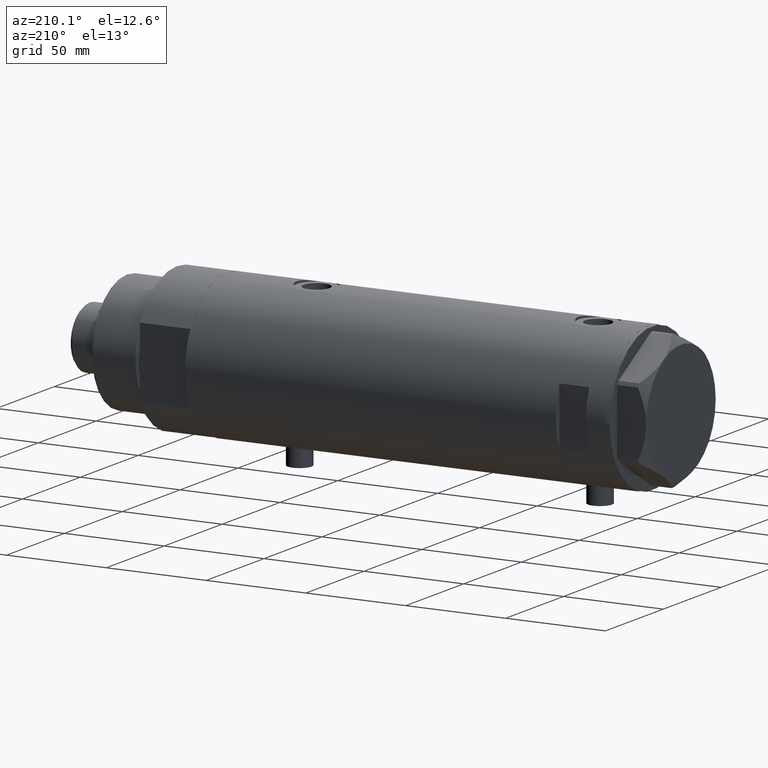
[diagram: clean part render]
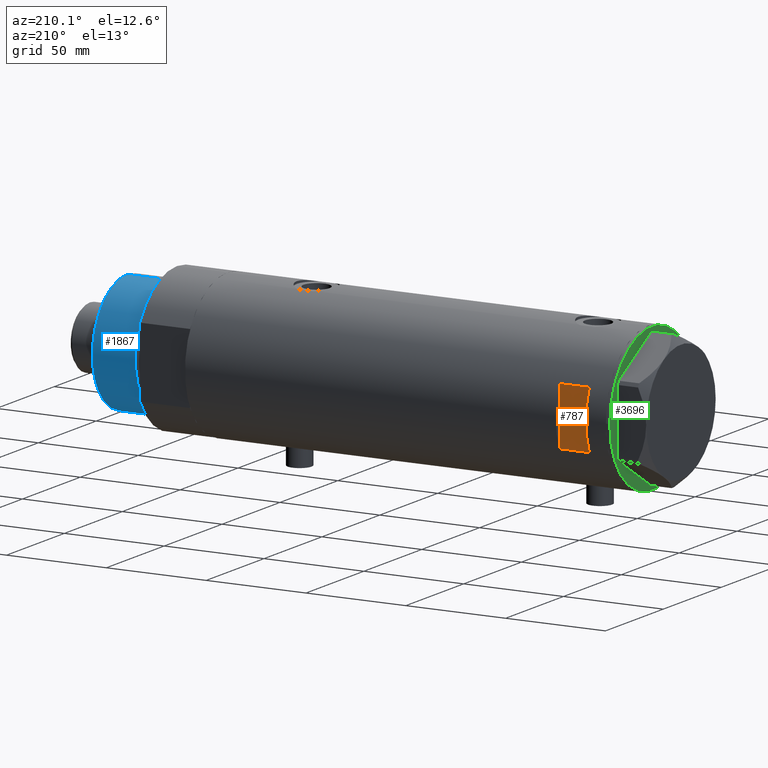
[diagram: same view with three faces highlighted in distinct colors, each labeled with its STEP entity id]
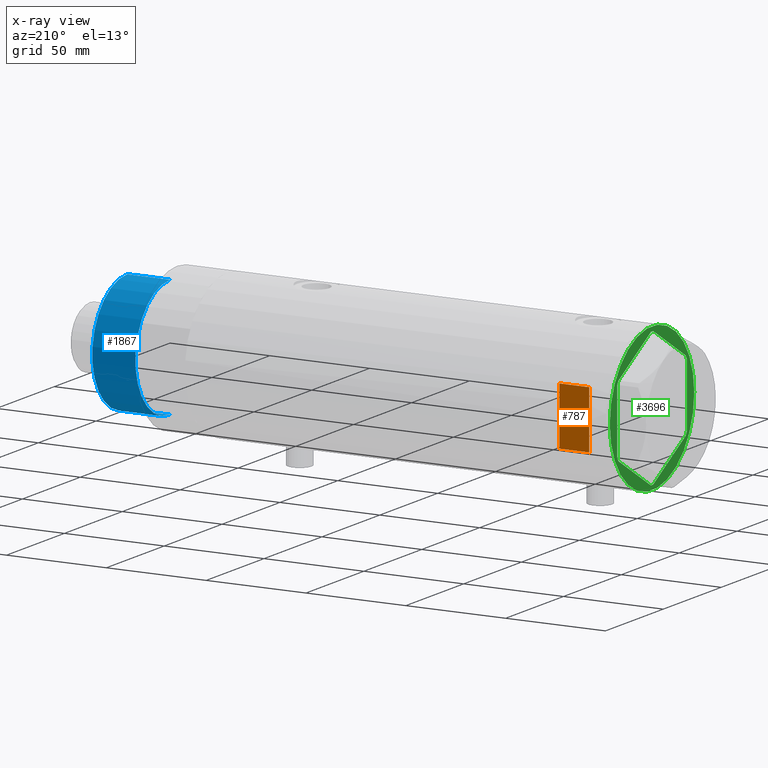
[diagram: x-ray of the same camera — body ghosted, the three highlighted faces saturated]
A machine part, auxiliary view with three faces highlighted in distinct colors.
The next image is the same camera in x-ray (body ghosted, the three faces saturated) — at least one of them is partly hidden behind the body in this view.
Their STEP definitions:

[orange] entity #787 — the highlighted planar face has unit normal (0, -1, -0).
#68 = VECTOR ( 'NONE', #4391, 1000.000000000000000 ) ;
#76 = ORIENTED_EDGE ( 'NONE', *, *, #3119, .T. ) ;
#207 = ORIENTED_EDGE ( 'NONE', *, *, #324, .T. ) ;
#231 = VECTOR ( 'NONE', #2472, 1000.000000000000000 ) ;
#324 = EDGE_CURVE ( 'NONE', #4333, #3210, #2555, .T. ) ;
#472 = FACE_OUTER_BOUND ( 'NONE', #2873, .T. ) ;
#521 = CARTESIAN_POINT ( 'NONE',  ( -36.50000000000000000, 33.50000000000000000, 95.40000000000001990 ) ) ;
#545 = DIRECTION ( 'NONE',  ( 0.000000000000000000, 0.000000000000000000, -1.000000000000000000 ) ) ;
#649 = CARTESIAN_POINT ( 'NONE',  ( 14.49137674618942562, 33.50000000000000000, -105.4000000000000057 ) ) ;
#656 = VECTOR ( 'NONE', #3284, 1000.000000000000000 ) ;
#787 = ADVANCED_FACE ( 'NONE', ( #472 ), #2933, .F. ) ;
#880 = CARTESIAN_POINT ( 'NONE',  ( -14.49137674618942739, 33.50000000000000000, 95.40000000000001990 ) ) ;
#969 = CARTESIAN_POINT ( 'NONE',  ( -36.50000000000000000, 33.50000000000000000, 80.40000000000003411 ) ) ;
#1000 = CARTESIAN_POINT ( 'NONE',  ( 14.49137674618942739, 33.50000000000000000, 95.40000000000001990 ) ) ;
#1266 = EDGE_CURVE ( 'NONE', #2802, #3436, #3757, .T. ) ;
#1301 = DIRECTION ( 'NONE',  ( -0.000000000000000000, -0.000000000000000000, -1.000000000000000000 ) ) ;
#1497 = DIRECTION ( 'NONE',  ( 0.000000000000000000, -1.000000000000000000, -0.000000000000000000 ) ) ;
#1806 = AXIS2_PLACEMENT_3D ( 'NONE', #1866, #1497, #545 ) ;
#1866 = CARTESIAN_POINT ( 'NONE',  ( -36.50000000000000000, 33.50000000000000000, 95.40000000000001990 ) ) ;
#1898 = VECTOR ( 'NONE', #1301, 1000.000000000000000 ) ;
#1917 = EDGE_CURVE ( 'NONE', #2802, #4333, #3903, .T. ) ;
#2298 = CARTESIAN_POINT ( 'NONE',  ( 14.49137674618942384, 33.50000000000000000, 80.40000000000003411 ) ) ;
#2472 = DIRECTION ( 'NONE',  ( 0.000000000000000000, 0.000000000000000000, 1.000000000000000000 ) ) ;
#2555 = LINE ( 'NONE', #521, #656 ) ;
#2664 = ORIENTED_EDGE ( 'NONE', *, *, #1266, .F. ) ;
#2704 = LINE ( 'NONE', #649, #1898 ) ;
#2802 = VERTEX_POINT ( 'NONE', #3752 ) ;
#2873 = EDGE_LOOP ( 'NONE', ( #76, #2664, #3994, #207 ) ) ;
#2933 = PLANE ( 'NONE',  #1806 ) ;
#3119 = EDGE_CURVE ( 'NONE', #3210, #3436, #2704, .T. ) ;
#3210 = VERTEX_POINT ( 'NONE', #1000 ) ;
#3284 = DIRECTION ( 'NONE',  ( 1.000000000000000000, -0.000000000000000000, -0.000000000000000000 ) ) ;
#3436 = VERTEX_POINT ( 'NONE', #2298 ) ;
#3495 = CARTESIAN_POINT ( 'NONE',  ( -14.49137674618942562, 33.50000000000000000, -105.4000000000000057 ) ) ;
#3752 = CARTESIAN_POINT ( 'NONE',  ( -14.49137674618942562, 33.50000000000000000, 80.40000000000003411 ) ) ;
#3757 = LINE ( 'NONE', #969, #68 ) ;
#3903 = LINE ( 'NONE', #3495, #231 ) ;
#3994 = ORIENTED_EDGE ( 'NONE', *, *, #1917, .T. ) ;
#4333 = VERTEX_POINT ( 'NONE', #880 ) ;
#4391 = DIRECTION ( 'NONE',  ( 1.000000000000000000, -0.000000000000000000, -0.000000000000000000 ) ) ;

[blue] entity #1867 — the highlighted cylindrical surface (partial cylindrical patch) has radius 30 mm, axis along (-1, -0, 0).
#66 = DIRECTION ( 'NONE',  ( -0.000000000000000000, -0.000000000000000000, -1.000000000000000000 ) ) ;
#455 = AXIS2_PLACEMENT_3D ( 'NONE', #3529, #1436, #700 ) ;
#465 = CYLINDRICAL_SURFACE ( 'NONE', #603, 30.00000000000000000 ) ;
#603 = AXIS2_PLACEMENT_3D ( 'NONE', #1136, #66, #2449 ) ;
#694 = CARTESIAN_POINT ( 'NONE',  ( -30.00000000000000000, 0.000000000000000000, 28.57384048104054486 ) ) ;
#700 = DIRECTION ( 'NONE',  ( 1.000000000000000000, 0.000000000000000000, 0.000000000000000000 ) ) ;
#724 = CARTESIAN_POINT ( 'NONE',  ( 30.00000000000000000, 3.673940397442058389E-15, 50.19999999999999574 ) ) ;
#933 = CARTESIAN_POINT ( 'NONE',  ( 30.00000000000000000, 3.673940397442058389E-15, 28.57384048104054486 ) ) ;
#1130 = LINE ( 'NONE', #724, #2186 ) ;
#1136 = CARTESIAN_POINT ( 'NONE',  ( 0.000000000000000000, 0.000000000000000000, 50.19999999999999574 ) ) ;
#1153 = VERTEX_POINT ( 'NONE', #933 ) ;
#1228 = EDGE_CURVE ( 'NONE', #1980, #4196, #2012, .T. ) ;
#1436 = DIRECTION ( 'NONE',  ( 0.000000000000000000, 0.000000000000000000, 1.000000000000000000 ) ) ;
#1482 = CIRCLE ( 'NONE', #1559, 30.00000000000000000 ) ;
#1559 = AXIS2_PLACEMENT_3D ( 'NONE', #3028, #2682, #3769 ) ;
#1761 = DIRECTION ( 'NONE',  ( -0.000000000000000000, -0.000000000000000000, -1.000000000000000000 ) ) ;
#1867 = ADVANCED_FACE ( 'NONE', ( #4238 ), #465, .T. ) ;
#1980 = VERTEX_POINT ( 'NONE', #2926 ) ;
#2006 = VERTEX_POINT ( 'NONE', #2302 ) ;
#2012 = LINE ( 'NONE', #3012, #3988 ) ;
#2186 = VECTOR ( 'NONE', #1761, 1000.000000000000000 ) ;
#2302 = CARTESIAN_POINT ( 'NONE',  ( 30.00000000000000000, 3.673940397442058389E-15, 50.19999999999999574 ) ) ;
#2317 = EDGE_CURVE ( 'NONE', #2006, #1153, #1130, .T. ) ;
#2333 = DIRECTION ( 'NONE',  ( -0.000000000000000000, -0.000000000000000000, -1.000000000000000000 ) ) ;
#2449 = DIRECTION ( 'NONE',  ( -1.000000000000000000, 0.000000000000000000, 0.000000000000000000 ) ) ;
#2534 = ORIENTED_EDGE ( 'NONE', *, *, #2317, .T. ) ;
#2620 = EDGE_CURVE ( 'NONE', #2006, #1980, #4066, .T. ) ;
#2682 = DIRECTION ( 'NONE',  ( -0.000000000000000000, -0.000000000000000000, 1.000000000000000000 ) ) ;
#2866 = ORIENTED_EDGE ( 'NONE', *, *, #1228, .F. ) ;
#2926 = CARTESIAN_POINT ( 'NONE',  ( -30.00000000000000000, 0.000000000000000000, 50.19999999999999574 ) ) ;
#3012 = CARTESIAN_POINT ( 'NONE',  ( -30.00000000000000000, 0.000000000000000000, 50.19999999999999574 ) ) ;
#3028 = CARTESIAN_POINT ( 'NONE',  ( 0.000000000000000000, 0.000000000000000000, 28.57384048104054486 ) ) ;
#3529 = CARTESIAN_POINT ( 'NONE',  ( 0.000000000000000000, 0.000000000000000000, 50.19999999999999574 ) ) ;
#3636 = EDGE_LOOP ( 'NONE', ( #4256, #2534, #3964, #2866 ) ) ;
#3769 = DIRECTION ( 'NONE',  ( 1.000000000000000000, 0.000000000000000000, 0.000000000000000000 ) ) ;
#3964 = ORIENTED_EDGE ( 'NONE', *, *, #4442, .T. ) ;
#3988 = VECTOR ( 'NONE', #2333, 1000.000000000000000 ) ;
#4066 = CIRCLE ( 'NONE', #455, 30.00000000000000000 ) ;
#4196 = VERTEX_POINT ( 'NONE', #694 ) ;
#4238 = FACE_OUTER_BOUND ( 'NONE', #3636, .T. ) ;
#4256 = ORIENTED_EDGE ( 'NONE', *, *, #2620, .F. ) ;
#4442 = EDGE_CURVE ( 'NONE', #1153, #4196, #1482, .T. ) ;

[green] entity #3696 — the highlighted planar face has unit normal (1, 0, -0).
#20 = DIRECTION ( 'NONE',  ( -1.000000000000000000, -0.000000000000000000, -0.000000000000000000 ) ) ;
#73 = DIRECTION ( 'NONE',  ( -0.5000000000000012212, 0.8660254037844380415, -0.000000000000000000 ) ) ;
#104 = ORIENTED_EDGE ( 'NONE', *, *, #1556, .F. ) ;
#155 = DIRECTION ( 'NONE',  ( 1.000000000000000000, -0.000000000000000000, -0.000000000000000000 ) ) ;
#202 = CARTESIAN_POINT ( 'NONE',  ( -5.841958412462644145E-15, -34.64101615137753498, 0.000000000000000000 ) ) ;
#222 = ORIENTED_EDGE ( 'NONE', *, *, #3775, .T. ) ;
#291 = CARTESIAN_POINT ( 'NONE',  ( 0.000000000000000000, 34.64101615137754209, 0.000000000000000000 ) ) ;
#316 = DIRECTION ( 'NONE',  ( 0.000000000000000000, 0.000000000000000000, -1.000000000000000000 ) ) ;
#323 = EDGE_CURVE ( 'NONE', #1896, #841, #2887, .T. ) ;
#342 = ORIENTED_EDGE ( 'NONE', *, *, #3394, .F. ) ;
#356 = CARTESIAN_POINT ( 'NONE',  ( -29.03005154776141339, 17.88050807568878042, 0.000000000000000000 ) ) ;
#363 = LINE ( 'NONE', #3129, #530 ) ;
#443 = VECTOR ( 'NONE', #2307, 1000.000000000000227 ) ;
#530 = VECTOR ( 'NONE', #3172, 999.9999999999998863 ) ;
#531 = CARTESIAN_POINT ( 'NONE',  ( 29.99999999999999289, 17.32050807568878170, 0.000000000000000000 ) ) ;
#550 = DIRECTION ( 'NONE',  ( 0.8660254037844389297, 0.4999999999999996114, 0.000000000000000000 ) ) ;
#646 = VERTEX_POINT ( 'NONE', #2778 ) ;
#670 = ORIENTED_EDGE ( 'NONE', *, *, #3788, .T. ) ;
#675 = VERTEX_POINT ( 'NONE', #3149 ) ;
#738 = DIRECTION ( 'NONE',  ( -3.004629197474318063E-16, 1.000000000000000000, 0.000000000000000000 ) ) ;
#810 = CARTESIAN_POINT ( 'NONE',  ( 29.51502577388068715, -17.04050807568881254, 0.000000000000000000 ) ) ;
#825 = AXIS2_PLACEMENT_3D ( 'NONE', #953, #316, #2377 ) ;
#841 = VERTEX_POINT ( 'NONE', #3220 ) ;
#941 = CARTESIAN_POINT ( 'NONE',  ( -30.00000000000000000, -17.32050807568877460, 0.000000000000000000 ) ) ;
#953 = CARTESIAN_POINT ( 'NONE',  ( 0.000000000000000000, 0.000000000000000000, 0.000000000000000000 ) ) ;
#991 = PLANE ( 'NONE',  #825 ) ;
#1023 = VERTEX_POINT ( 'NONE', #1823 ) ;
#1027 = EDGE_CURVE ( 'NONE', #2935, #3532, #3967, .T. ) ;
#1058 = LINE ( 'NONE', #1458, #3488 ) ;
#1147 = LINE ( 'NONE', #941, #443 ) ;
#1184 = VECTOR ( 'NONE', #1481, 1000.000000000000000 ) ;
#1201 = DIRECTION ( 'NONE',  ( -0.8660254037844387076, 0.4999999999999997780, 0.000000000000000000 ) ) ;
#1231 = ORIENTED_EDGE ( 'NONE', *, *, #4220, .F. ) ;
#1244 = CIRCLE ( 'NONE', #2266, 36.50000000000000000 ) ;
#1275 = CARTESIAN_POINT ( 'NONE',  ( -36.50000000000000000, 4.469960816887838430E-15, 0.000000000000000000 ) ) ;
#1322 = VERTEX_POINT ( 'NONE', #2646 ) ;
#1327 = VERTEX_POINT ( 'NONE', #356 ) ;
#1419 = LINE ( 'NONE', #2462, #2757 ) ;
#1458 = CARTESIAN_POINT ( 'NONE',  ( 0.000000000000000000, -34.08101615137752560, 0.000000000000000000 ) ) ;
#1481 = DIRECTION ( 'NONE',  ( 0.5000000000000008882, 0.8660254037844381525, -0.000000000000000000 ) ) ;
#1539 = CARTESIAN_POINT ( 'NONE',  ( 29.03005154776141694, -17.88050807568878042, 0.000000000000000000 ) ) ;
#1556 = EDGE_CURVE ( 'NONE', #1896, #2744, #1147, .T. ) ;
#1682 = VECTOR ( 'NONE', #1756, 999.9999999999998863 ) ;
#1733 = VECTOR ( 'NONE', #73, 999.9999999999998863 ) ;
#1739 = EDGE_LOOP ( 'NONE', ( #342, #2253, #1231, #670, #2578, #2582, #104, #2900, #4465, #222, #2475, #3483 ) ) ;
#1756 = DIRECTION ( 'NONE',  ( -0.5000000000000012212, -0.8660254037844380415, -0.000000000000000000 ) ) ;
#1823 = CARTESIAN_POINT ( 'NONE',  ( 29.03005154776139207, 17.88050807568879463, 0.000000000000000000 ) ) ;
#1859 = EDGE_CURVE ( 'NONE', #675, #2059, #1244, .T. ) ;
#1887 = CARTESIAN_POINT ( 'NONE',  ( 0.000000000000000000, 0.000000000000000000, 0.000000000000000000 ) ) ;
#1896 = VERTEX_POINT ( 'NONE', #4169 ) ;
#1923 = LINE ( 'NONE', #531, #4141 ) ;
#1956 = VERTEX_POINT ( 'NONE', #1539 ) ;
#2059 = VERTEX_POINT ( 'NONE', #1275 ) ;
#2102 = CARTESIAN_POINT ( 'NONE',  ( 0.000000000000000000, 34.08101615137753981, 0.000000000000000000 ) ) ;
#2107 = DIRECTION ( 'NONE',  ( 0.000000000000000000, -1.000000000000000000, 0.000000000000000000 ) ) ;
#2132 = VERTEX_POINT ( 'NONE', #3021 ) ;
#2253 = ORIENTED_EDGE ( 'NONE', *, *, #2295, .T. ) ;
#2266 = AXIS2_PLACEMENT_3D ( 'NONE', #2518, #2782, #3930 ) ;
#2295 = EDGE_CURVE ( 'NONE', #1023, #3919, #363, .T. ) ;
#2307 = DIRECTION ( 'NONE',  ( 0.8660254037844387076, -0.4999999999999997780, 0.000000000000000000 ) ) ;
#2377 = DIRECTION ( 'NONE',  ( -1.000000000000000000, 0.000000000000000000, -0.000000000000000000 ) ) ;
#2443 = LINE ( 'NONE', #810, #1682 ) ;
#2455 = CARTESIAN_POINT ( 'NONE',  ( -0.9699484522385684038, 34.08101615137753981, 0.000000000000000000 ) ) ;
#2462 = CARTESIAN_POINT ( 'NONE',  ( -30.00000000000000000, 17.32050807568877460, 0.000000000000000000 ) ) ;
#2471 = EDGE_CURVE ( 'NONE', #2935, #1327, #2733, .T. ) ;
#2475 = ORIENTED_EDGE ( 'NONE', *, *, #2471, .F. ) ;
#2518 = CARTESIAN_POINT ( 'NONE',  ( 0.000000000000000000, 0.000000000000000000, 0.000000000000000000 ) ) ;
#2559 = CARTESIAN_POINT ( 'NONE',  ( 29.99999999999999289, 16.20050807568875584, 0.000000000000000000 ) ) ;
#2560 = EDGE_CURVE ( 'NONE', #646, #2744, #1058, .T. ) ;
#2578 = ORIENTED_EDGE ( 'NONE', *, *, #2767, .F. ) ;
#2582 = ORIENTED_EDGE ( 'NONE', *, *, #2560, .T. ) ;
#2640 = EDGE_CURVE ( 'NONE', #1322, #841, #1419, .T. ) ;
#2645 = AXIS2_PLACEMENT_3D ( 'NONE', #1887, #4316, #3326 ) ;
#2646 = CARTESIAN_POINT ( 'NONE',  ( -30.00000000000000000, 16.20050807568875584, 0.000000000000000000 ) ) ;
#2692 = VECTOR ( 'NONE', #3717, 1000.000000000000114 ) ;
#2733 = LINE ( 'NONE', #291, #2692 ) ;
#2744 = VERTEX_POINT ( 'NONE', #3965 ) ;
#2757 = VECTOR ( 'NONE', #2107, 1000.000000000000000 ) ;
#2767 = EDGE_CURVE ( 'NONE', #646, #1956, #3286, .T. ) ;
#2778 = CARTESIAN_POINT ( 'NONE',  ( 0.9699484522385750651, -34.08101615137752560, 0.000000000000000000 ) ) ;
#2782 = DIRECTION ( 'NONE',  ( 0.000000000000000000, 0.000000000000000000, -1.000000000000000000 ) ) ;
#2858 = VECTOR ( 'NONE', #738, 1000.000000000000000 ) ;
#2878 = ORIENTED_EDGE ( 'NONE', *, *, #4395, .F. ) ;
#2887 = LINE ( 'NONE', #3546, #1733 ) ;
#2900 = ORIENTED_EDGE ( 'NONE', *, *, #323, .T. ) ;
#2935 = VERTEX_POINT ( 'NONE', #2455 ) ;
#2984 = VECTOR ( 'NONE', #550, 1000.000000000000000 ) ;
#3021 = CARTESIAN_POINT ( 'NONE',  ( 30.00000000000000355, -16.20050807568876294, 0.000000000000000000 ) ) ;
#3129 = CARTESIAN_POINT ( 'NONE',  ( 29.51502577388065873, 17.04050807568883386, 0.000000000000000000 ) ) ;
#3149 = CARTESIAN_POINT ( 'NONE',  ( 36.50000000000000000, 0.000000000000000000, 0.000000000000000000 ) ) ;
#3172 = DIRECTION ( 'NONE',  ( 0.5000000000000019984, -0.8660254037844375974, -0.000000000000000000 ) ) ;
#3220 = CARTESIAN_POINT ( 'NONE',  ( -30.00000000000000000, -16.20050807568876294, 0.000000000000000000 ) ) ;
#3286 = LINE ( 'NONE', #202, #2984 ) ;
#3326 = DIRECTION ( 'NONE',  ( -1.000000000000000000, 0.000000000000000000, 0.000000000000000000 ) ) ;
#3394 = EDGE_CURVE ( 'NONE', #1023, #3532, #1923, .T. ) ;
#3433 = EDGE_LOOP ( 'NONE', ( #4456, #2878 ) ) ;
#3483 = ORIENTED_EDGE ( 'NONE', *, *, #1027, .T. ) ;
#3488 = VECTOR ( 'NONE', #20, 1000.000000000000000 ) ;
#3508 = LINE ( 'NONE', #4230, #1184 ) ;
#3532 = VERTEX_POINT ( 'NONE', #3718 ) ;
#3546 = CARTESIAN_POINT ( 'NONE',  ( -29.51502577388068715, -17.04050807568881254, 0.000000000000000000 ) ) ;
#3696 = ADVANCED_FACE ( 'NONE', ( #4115, #4461 ), #991, .F. ) ;
#3717 = DIRECTION ( 'NONE',  ( -0.8660254037844387076, -0.4999999999999998335, 0.000000000000000000 ) ) ;
#3718 = CARTESIAN_POINT ( 'NONE',  ( 0.9699484522385712904, 34.08101615137753981, 0.000000000000000000 ) ) ;
#3775 = EDGE_CURVE ( 'NONE', #1322, #1327, #3508, .T. ) ;
#3788 = EDGE_CURVE ( 'NONE', #2132, #1956, #2443, .T. ) ;
#3848 = VECTOR ( 'NONE', #155, 1000.000000000000000 ) ;
#3849 = LINE ( 'NONE', #3869, #2858 ) ;
#3869 = CARTESIAN_POINT ( 'NONE',  ( 30.00000000000000355, -17.32050807568877460, 0.000000000000000000 ) ) ;
#3919 = VERTEX_POINT ( 'NONE', #2559 ) ;
#3930 = DIRECTION ( 'NONE',  ( -1.000000000000000000, 0.000000000000000000, 0.000000000000000000 ) ) ;
#3965 = CARTESIAN_POINT ( 'NONE',  ( -0.9699484522385886098, -34.08101615137752560, 0.000000000000000000 ) ) ;
#3967 = LINE ( 'NONE', #2102, #3848 ) ;
#4025 = CIRCLE ( 'NONE', #2645, 36.50000000000000000 ) ;
#4115 = FACE_BOUND ( 'NONE', #1739, .T. ) ;
#4141 = VECTOR ( 'NONE', #1201, 1000.000000000000227 ) ;
#4169 = CARTESIAN_POINT ( 'NONE',  ( -29.03005154776141339, -17.88050807568878042, 0.000000000000000000 ) ) ;
#4220 = EDGE_CURVE ( 'NONE', #2132, #3919, #3849, .T. ) ;
#4230 = CARTESIAN_POINT ( 'NONE',  ( -29.51502577388069071, 17.04050807568879833, 0.000000000000000000 ) ) ;
#4316 = DIRECTION ( 'NONE',  ( 0.000000000000000000, 0.000000000000000000, -1.000000000000000000 ) ) ;
#4395 = EDGE_CURVE ( 'NONE', #2059, #675, #4025, .T. ) ;
#4456 = ORIENTED_EDGE ( 'NONE', *, *, #1859, .F. ) ;
#4461 = FACE_OUTER_BOUND ( 'NONE', #3433, .T. ) ;
#4465 = ORIENTED_EDGE ( 'NONE', *, *, #2640, .F. ) ;